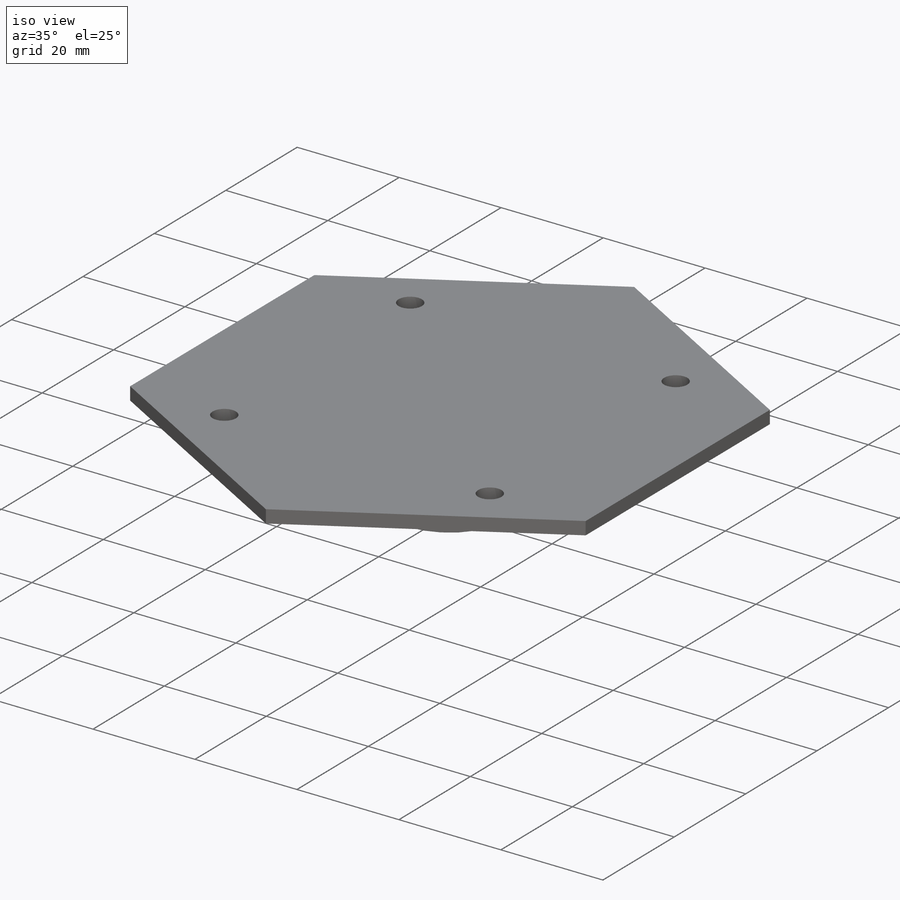
[diagram: iso view]
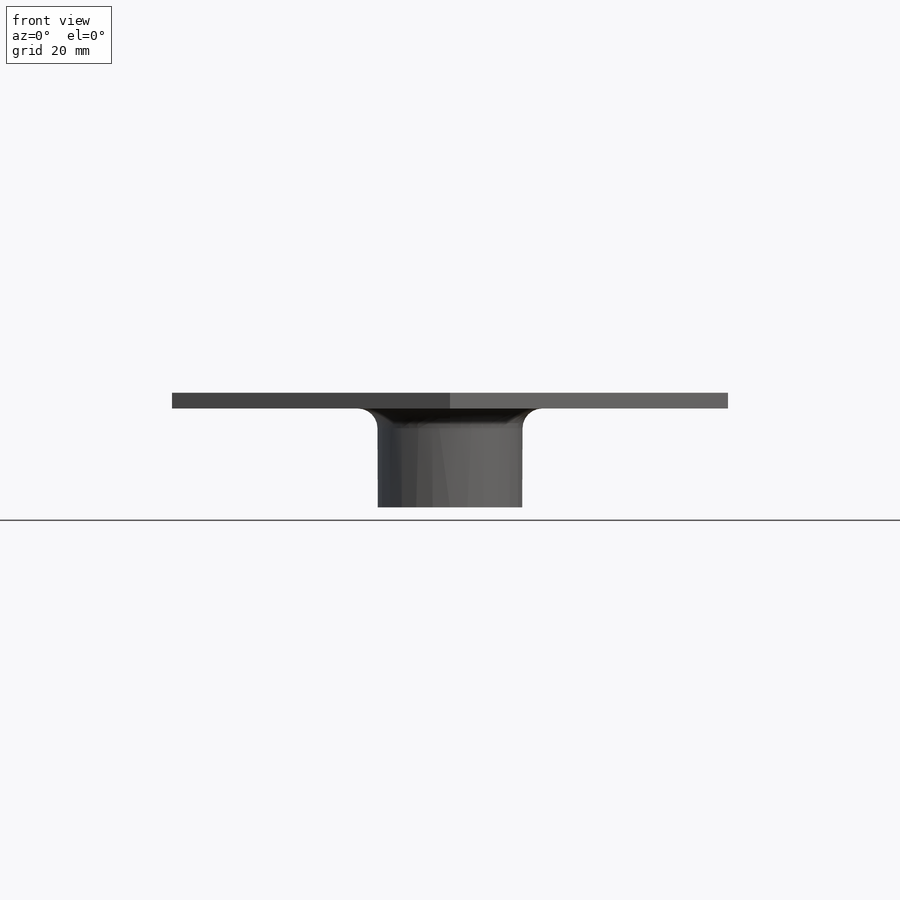
[diagram: front view]
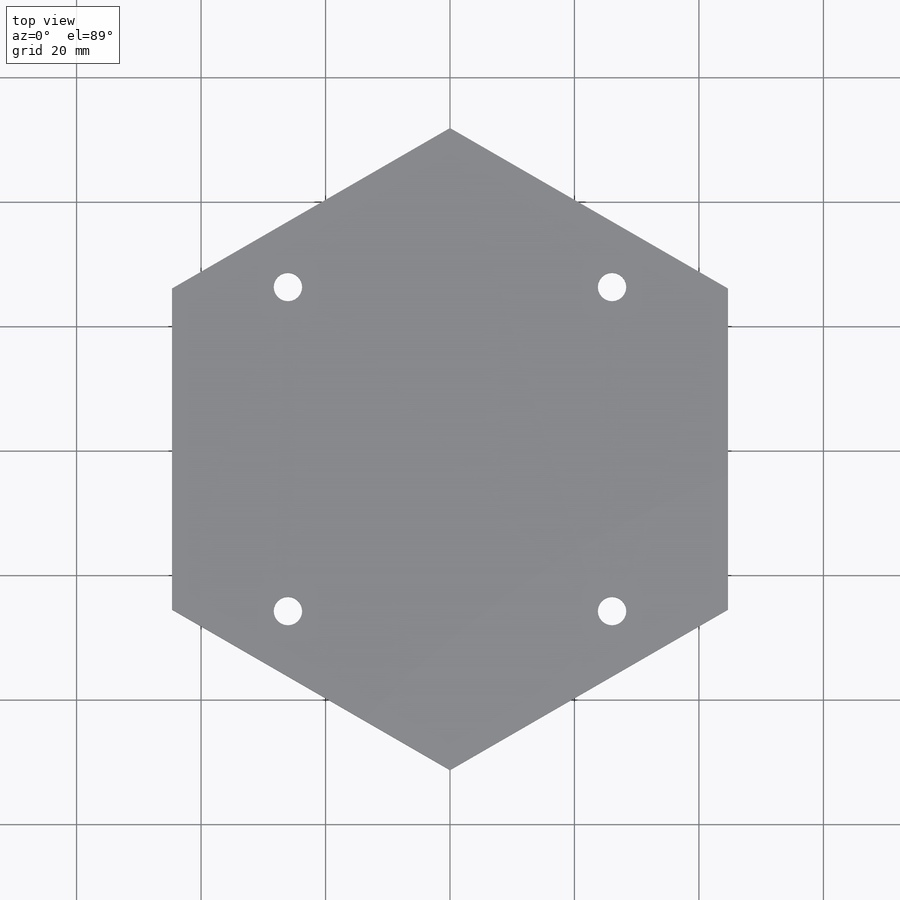
[diagram: top view]
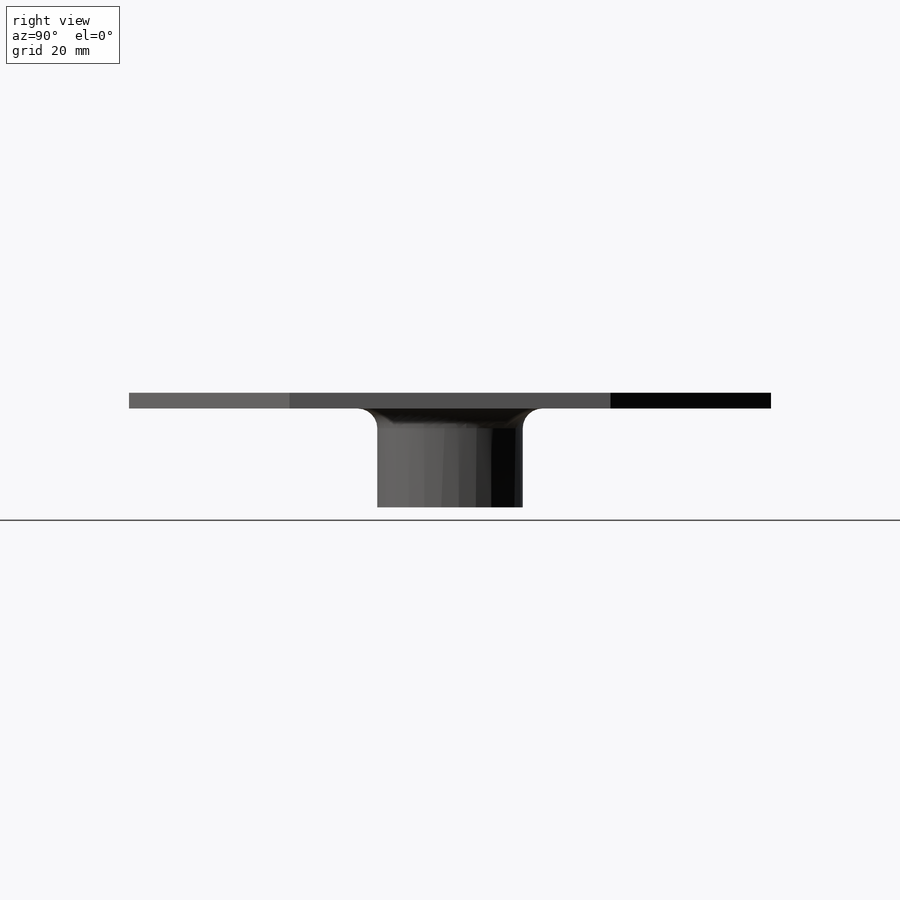
[diagram: right view]
SOLIDWORKS PART (.sldprt)
format: sldprt  version: not decoded by parser v0  size: 308,224 bytes
history: native  units: mm
features: sketch x4, extrude x2, material x1, fillet x1, helix x1, sweep x1 (+13 scaffold rows collapsed)
feature tree (23):
  scaffold x13  (default folders/planes/origin — collapsed)
  material  "Material <not specified>"
  sketch  "Sketch1"  dims[D3=4.572mm D1=26.035mm D2=26.035mm D5=55.245mm D4=4.0]
  extrude  "Boss-Extrude1"  Depth=2.54mm
  sketch  "Sketch2"  dims[D1=19.812mm D2=23.368mm]
  extrude  "Boss-Extrude2"  Depth=15.875mm
  fillet  "Fillet1"  Radius=3.175mm
  sketch  "Sketch4"  dims[c1.D1=9.906mm c1.D2=1.524mm c1.D3=0.0mm c1.D4=1.778mm c2.D1=1.524mm c2.D2=1.778mm c2.D3=0.1016mm c2.D4=0.1016mm]
  sketch  "Sketch6"
  helix  "Helix/Spiral1"  Pitch=14.224mm
  sweep  "Sweep2"
decode coverage: 7 of 9 modeling features carry decoded parameters
note: suppression state not decoded; provenance and decode notes live in map.json
